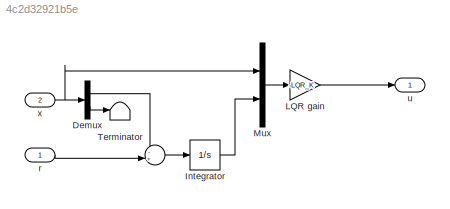
MODEL slx_4c2d32921b5e
KIND model
CONFIG AbsTol = auto
CONFIG FixedStep = auto
CONFIG MaxStep = auto
CONFIG MinStep = auto
CONFIG RelTol = 1e-3
CONFIG SampleTimeConstraint = Unconstrained
CONFIG Solver = VariableStepAuto
CONFIG SolverMode = Auto
CONFIG SolverName = VariableStepAuto
CONFIG StartTime = 0.0
CONFIG StopTime = 10.0
BLOCK [Sum]  
  IconShape = round
  InputSameDT = off
  Inputs = -+|
  OutDataTypeStr = Inherit: Inherit via internal rule
  Ports = [2, 1]
  SaturateOnIntegerOverflow = off
BLOCK [Demux] Demux
  DisplayOption = bar
  Outputs = [2,1]
  Ports = [1, 2]
BLOCK [Integrator] Integrator
  Ports = [1, 1]
BLOCK [Gain] LQR gain
  Gain = -LQR_K
  Multiplication = Matrix(K*u)
  OutDataTypeStr = Inherit: Inherit via internal rule
  ParamDataTypeStr = Inherit: Inherit via internal rule
  SaturateOnIntegerOverflow = off
BLOCK [Mux] Mux
  DisplayOption = bar
  Inputs = [3,2]
  Ports = [2, 1]
BLOCK [Terminator] Terminator
BLOCK [Inport] r
  IconDisplay = Port number
  PortDimensions = 2
BLOCK [Outport] u
  IconDisplay = Port number
  PortDimensions = 1
BLOCK [Inport] x
  IconDisplay = Port number
  Port = 2
  PortDimensions = 3
LINE  :1 -> Integrator:1
LINE Demux:1 ->  :1
LINE Demux:2 -> Terminator:1
LINE Integrator:1 -> Mux:2
LINE LQR gain:1 -> u:1
LINE Mux:1 -> LQR gain:1
LINE r:1 ->  :2
NET x:1 -> Demux:1, Mux:1
note: NET lines group one-source signal fan-out (src -> all destinations, sorted); 1:1 wires keep LINE
